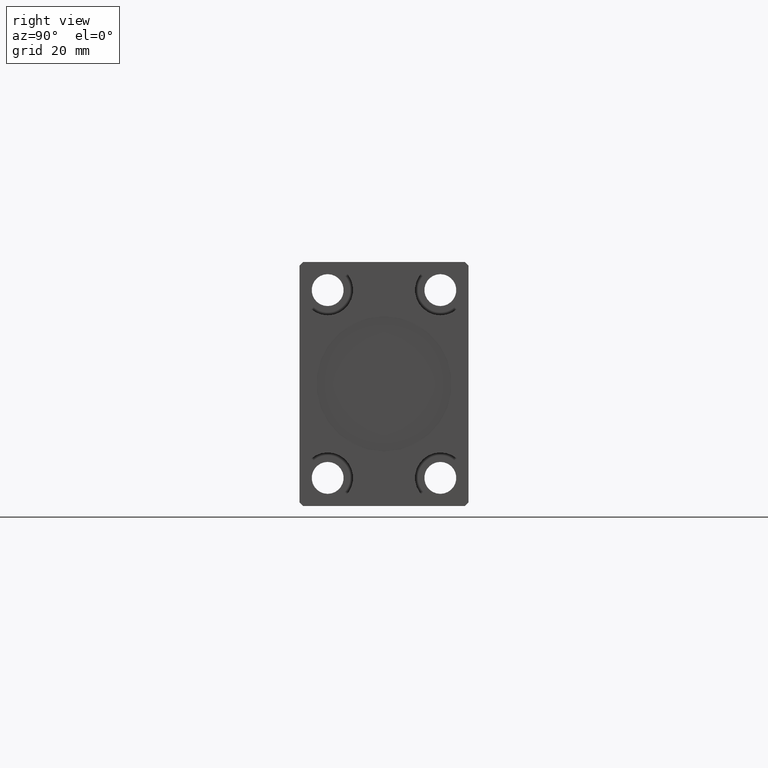
[diagram: clean part render]
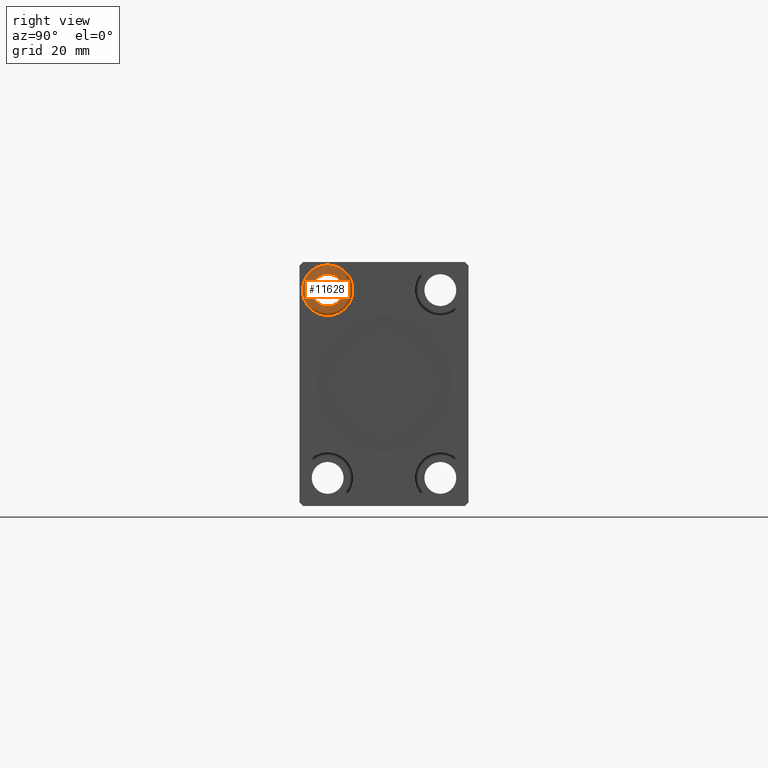
[diagram: same view with one face highlighted and labeled with its STEP entity id]
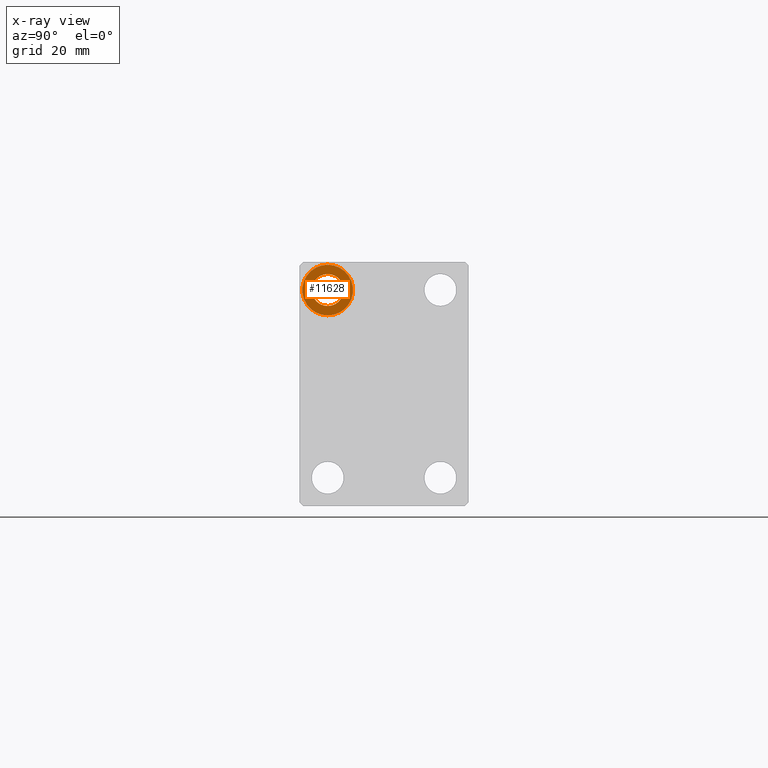
[diagram: x-ray of the same camera — body ghosted, the highlighted face saturated]
A machine part, right view. The second image highlights one B-rep face of the part: STEP entity #11628.
The next image is the same camera in x-ray: the body ghosted, the highlighted face saturated — about 0% of this face is hidden behind the body in this view.
In plain terms, the highlighted planar face has unit normal (1, 0, -0).
Its self-contained STEP definition (entity closure, byte-faithful):
#556 = CARTESIAN_POINT ( 'NONE',  ( 167.6699999999999875, -15.00000000000000000, 18.24999999999999645 ) ) ;
#1282 = EDGE_LOOP ( 'NONE', ( #38861, #41697 ) ) ;
#1502 = DIRECTION ( 'NONE',  ( 0.000000000000000000, 0.000000000000000000, -1.000000000000000000 ) ) ;
#1619 = CIRCLE ( 'NONE', #29786, 6.750000000000006217 ) ;
#1624 = PLANE ( 'NONE',  #22083 ) ;
#2024 = DIRECTION ( 'NONE',  ( 1.000000000000000000, 0.000000000000000000, 0.000000000000000000 ) ) ;
#5874 = VERTEX_POINT ( 'NONE', #556 ) ;
#8089 = FACE_OUTER_BOUND ( 'NONE', #9397, .T. ) ;
#8398 = CARTESIAN_POINT ( 'NONE',  ( 167.6699999999999875, -15.00000000000000000, 25.00000000000000000 ) ) ;
#9089 = EDGE_CURVE ( 'NONE', #21616, #14905, #33135, .T. ) ;
#9376 = ORIENTED_EDGE ( 'NONE', *, *, #27868, .F. ) ;
#9397 = EDGE_LOOP ( 'NONE', ( #25151, #9376 ) ) ;
#10094 = DIRECTION ( 'NONE',  ( 0.000000000000000000, 0.000000000000000000, 1.000000000000000000 ) ) ;
#11536 = FACE_BOUND ( 'NONE', #1282, .T. ) ;
#11628 = ADVANCED_FACE ( 'NONE', ( #11536, #8089 ), #1624, .T. ) ;
#14183 = CIRCLE ( 'NONE', #39592, 6.750000000000006217 ) ;
#14905 = VERTEX_POINT ( 'NONE', #27583 ) ;
#15210 = DIRECTION ( 'NONE',  ( 0.000000000000000000, 0.000000000000000000, 1.000000000000000000 ) ) ;
#15610 = CARTESIAN_POINT ( 'NONE',  ( 167.6699999999999875, -15.00000000000000000, 31.75000000000000711 ) ) ;
#19490 = EDGE_CURVE ( 'NONE', #5874, #31153, #1619, .T. ) ;
#21616 = VERTEX_POINT ( 'NONE', #28960 ) ;
#22083 = AXIS2_PLACEMENT_3D ( 'NONE', #24871, #27452, #24660 ) ;
#24541 = CIRCLE ( 'NONE', #34171, 4.249999999999996447 ) ;
#24660 = DIRECTION ( 'NONE',  ( 0.000000000000000000, 0.000000000000000000, 1.000000000000000000 ) ) ;
#24871 = CARTESIAN_POINT ( 'NONE',  ( 167.6699999999999875, -15.00000000000000000, 25.00000000000000000 ) ) ;
#25151 = ORIENTED_EDGE ( 'NONE', *, *, #19490, .F. ) ;
#27452 = DIRECTION ( 'NONE',  ( 1.000000000000000000, 0.000000000000000000, -0.000000000000000000 ) ) ;
#27583 = CARTESIAN_POINT ( 'NONE',  ( 167.6699999999999875, -15.00000000000000000, 29.25000000000000000 ) ) ;
#27868 = EDGE_CURVE ( 'NONE', #31153, #5874, #14183, .T. ) ;
#28960 = CARTESIAN_POINT ( 'NONE',  ( 167.6699999999999875, -15.00000000000000000, 20.75000000000000355 ) ) ;
#29786 = AXIS2_PLACEMENT_3D ( 'NONE', #34816, #31573, #15210 ) ;
#30337 = AXIS2_PLACEMENT_3D ( 'NONE', #31530, #2024, #37359 ) ;
#31153 = VERTEX_POINT ( 'NONE', #15610 ) ;
#31530 = CARTESIAN_POINT ( 'NONE',  ( 167.6699999999999875, -15.00000000000000000, 25.00000000000000000 ) ) ;
#31573 = DIRECTION ( 'NONE',  ( -1.000000000000000000, -0.000000000000000000, -0.000000000000000000 ) ) ;
#32930 = CARTESIAN_POINT ( 'NONE',  ( 167.6699999999999875, -15.00000000000000000, 25.00000000000000000 ) ) ;
#33135 = CIRCLE ( 'NONE', #30337, 4.249999999999996447 ) ;
#34171 = AXIS2_PLACEMENT_3D ( 'NONE', #8398, #38104, #1502 ) ;
#34386 = EDGE_CURVE ( 'NONE', #14905, #21616, #24541, .T. ) ;
#34816 = CARTESIAN_POINT ( 'NONE',  ( 167.6699999999999875, -15.00000000000000000, 25.00000000000000000 ) ) ;
#37359 = DIRECTION ( 'NONE',  ( 0.000000000000000000, 0.000000000000000000, -1.000000000000000000 ) ) ;
#38104 = DIRECTION ( 'NONE',  ( 1.000000000000000000, 0.000000000000000000, 0.000000000000000000 ) ) ;
#38861 = ORIENTED_EDGE ( 'NONE', *, *, #34386, .F. ) ;
#39589 = DIRECTION ( 'NONE',  ( -1.000000000000000000, -0.000000000000000000, -0.000000000000000000 ) ) ;
#39592 = AXIS2_PLACEMENT_3D ( 'NONE', #32930, #39589, #10094 ) ;
#41697 = ORIENTED_EDGE ( 'NONE', *, *, #9089, .F. ) ;